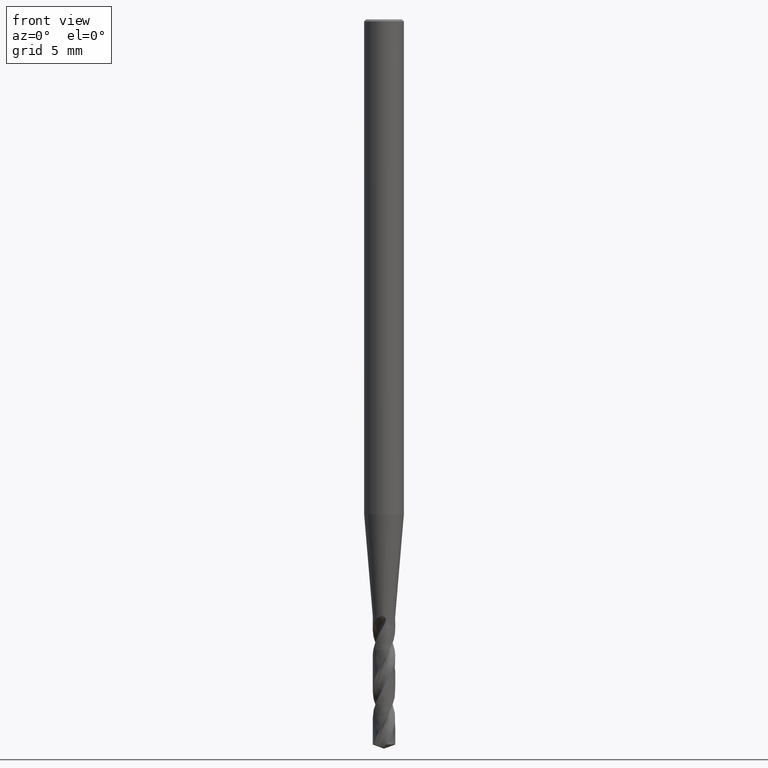
[diagram: clean part render]
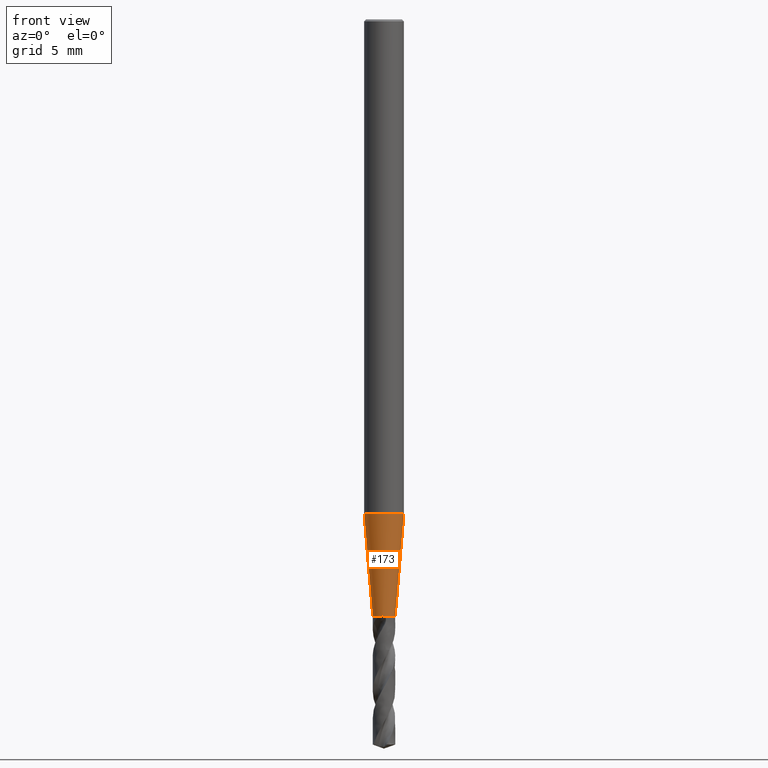
[diagram: same view with one face highlighted and labeled with its STEP entity id]
A machine part, front view. The second image highlights one B-rep face of the part: STEP entity #173.
In plain terms, the highlighted face is a freeform B-spline surface patch.
Its self-contained STEP definition (entity closure, byte-faithful):
#75 = VERTEX_POINT('', #76);
#76 = CARTESIAN_POINT('', (-0.242015249666791, -0.814818150834109, -45.));
#110 = EDGE_CURVE('', #75, #111, #113, .T.);
#111 = VERTEX_POINT('', #112);
#112 = CARTESIAN_POINT('', (-0.85, 2.80750278704531E-15, -45.));
#113 = CIRCLE('', #114, 0.849999999999998);
#114 = AXIS2_PLACEMENT_3D('', #115, #116, #117);
#115 = CARTESIAN_POINT('', (1.68722975549459E-31, 2.75545529808154E-15, -45.));
#116 = DIRECTION('', (3.74939945665464E-33, 6.12323399573677E-17, -1.));
#117 = DIRECTION('', (-1., 6.12323399573677E-17, 0.));
#173 = ADVANCED_FACE('', (#174), #285, .T.);
#174 = FACE_OUTER_BOUND('', #175, .T.);
#175 = EDGE_LOOP('', (#176, #193, #202, #217, #225, #240, #247, #255, #262, #263, #264, #279));
#176 = ORIENTED_EDGE('', *, *, #177, .T.);
#177 = EDGE_CURVE('', #178, #180, #182, .T.);
#178 = VERTEX_POINT('', #179);
#179 = CARTESIAN_POINT('', (-0.116472770193766, -0.843689035298351, -44.98));
#180 = VERTEX_POINT('', #181);
#181 = CARTESIAN_POINT('', (-0.0113583335266915, -0.849924107352822, -45.));
#182 = B_SPLINE_CURVE_WITH_KNOTS('', 3, (#183, #184, #185, #186, #187, #188, #189, #190, #191, #192), .UNSPECIFIED., .F., .U., (4, 3, 3, 4), (0., 0.0388263671759205, 0.0775487067992832, 0.107934768047381), .UNSPECIFIED.);
#183 = CARTESIAN_POINT('', (-0.116472770193746, -0.843689035298354, -44.98));
#184 = CARTESIAN_POINT('', (-0.103652091234451, -0.845457803717948, -44.9800134651162));
#185 = CARTESIAN_POINT('', (-0.0907490556722904, -0.846875475080581, -44.9807536850073));
#186 = CARTESIAN_POINT('', (-0.0779495075884962, -0.847915569711978, -44.9823625056988));
#187 = CARTESIAN_POINT('', (-0.0651842533559646, -0.848952877616034, -44.9839670158742));
#188 = CARTESIAN_POINT('', (-0.0524523591742012, -0.849618763970118, -44.9864482899008));
#189 = CARTESIAN_POINT('', (-0.0400248670735214, -0.849909932922412, -44.9899231765091));
#190 = CARTESIAN_POINT('', (-0.0302728081895671, -0.850138418021815, -44.9926499775841));
#191 = CARTESIAN_POINT('', (-0.0206622698086067, -0.850137749399301, -44.9960023220794));
#192 = CARTESIAN_POINT('', (-0.0113583335266863, -0.849924107352822, -45.));
#193 = ORIENTED_EDGE('', *, *, #194, .F.);
#194 = EDGE_CURVE('', #195, #180, #197, .T.);
#195 = VERTEX_POINT('', #196);
#196 = CARTESIAN_POINT('', (0.242015249666791, 0.814818150834114, -45.));
#197 = CIRCLE('', #198, 0.849999999999998);
#198 = AXIS2_PLACEMENT_3D('', #199, #200, #201);
#199 = CARTESIAN_POINT('', (1.68722975549459E-31, 2.75545529808154E-15, -45.));
#200 = DIRECTION('', (3.74939945665464E-33, 6.12323399573677E-17, -1.));
#201 = DIRECTION('', (-1., 6.12323399573677E-17, 0.));
#202 = ORIENTED_EDGE('', *, *, #203, .F.);
#203 = EDGE_CURVE('', #204, #195, #206, .T.);
#204 = VERTEX_POINT('', #205);
#205 = CARTESIAN_POINT('', (0.117187698491014, 0.843590029458422, -44.98));
#206 = B_SPLINE_CURVE_WITH_KNOTS('', 3, (#207, #208, #209, #210, #211, #212, #213, #214, #215, #216), .UNSPECIFIED., .F., .U., (4, 3, 3, 4), (0., 0.0589415863596333, 0.117468801322687, 0.130118926991663), .UNSPECIFIED.);
#207 = CARTESIAN_POINT('', (0.117187698499809, 0.843590029457203, -44.98));
#208 = CARTESIAN_POINT('', (0.136647775251346, 0.84088498137007, -44.980020416838));
#209 = CARTESIAN_POINT('', (0.15604416048936, 0.837352714032996, -44.9817032845893));
#210 = CARTESIAN_POINT('', (0.175008044515285, 0.833117978750446, -44.9846102432946));
#211 = CARTESIAN_POINT('', (0.193838608561316, 0.828913014522284, -44.9874967654863));
#212 = CARTESIAN_POINT('', (0.212358776571742, 0.823993897811563, -44.9916052798852));
#213 = CARTESIAN_POINT('', (0.230387418593385, 0.81847868912554, -44.9966206977959));
#214 = CARTESIAN_POINT('', (0.234284145737479, 0.817286626885557, -44.9977047348015));
#215 = CARTESIAN_POINT('', (0.23816049473715, 0.816066080130397, -44.998832023993));
#216 = CARTESIAN_POINT('', (0.242015249666783, 0.814818150834116, -45.));
#217 = ORIENTED_EDGE('', *, *, #218, .F.);
#218 = EDGE_CURVE('', #219, #204, #221, .T.);
#219 = VERTEX_POINT('', #220);
#220 = CARTESIAN_POINT('', (0.116472770193462, 0.843689035298399, -44.98));
#221 = LINE('', #222, #223);
#222 = CARTESIAN_POINT('', (0.116472770193462, 0.843689035298399, -44.98));
#223 = VECTOR('', #224, 0.000721751083816157);
#224 = DIRECTION('', (0.000714928297551765, -9.90058399769067E-5, 0.));
#225 = ORIENTED_EDGE('', *, *, #226, .T.);
#226 = EDGE_CURVE('', #219, #227, #229, .T.);
#227 = VERTEX_POINT('', #228);
#228 = CARTESIAN_POINT('', (0.0113583335266967, 0.849924107352828, -45.));
#229 = B_SPLINE_CURVE_WITH_KNOTS('', 3, (#230, #231, #232, #233, #234, #235, #236, #237, #238, #239), .UNSPECIFIED., .F., .U., (4, 3, 3, 4), (0., 0.0388263671759207, 0.0775487067992826, 0.107934768047281), .UNSPECIFIED.);
#230 = CARTESIAN_POINT('', (0.116472770193654, 0.843689035298372, -44.98));
#231 = CARTESIAN_POINT('', (0.103652091234358, 0.845457803717964, -44.9800134651162));
#232 = CARTESIAN_POINT('', (0.090749055672198, 0.846875475080595, -44.9807536850074));
#233 = CARTESIAN_POINT('', (0.0779495075884041, 0.84791556971199, -44.9823625056988));
#234 = CARTESIAN_POINT('', (0.0651842533558732, 0.848952877616045, -44.9839670158742));
#235 = CARTESIAN_POINT('', (0.0524523591741107, 0.849618763970126, -44.9864482899008));
#236 = CARTESIAN_POINT('', (0.0400248670734325, 0.849909932922419, -44.9899231765091));
#237 = CARTESIAN_POINT('', (0.0302728081895113, 0.85013841802182, -44.9926499775841));
#238 = CARTESIAN_POINT('', (0.0206622698085821, 0.850137749399305, -44.9960023220794));
#239 = CARTESIAN_POINT('', (0.0113583335266922, 0.849924107352828, -45.));
#240 = ORIENTED_EDGE('', *, *, #241, .F.);
#241 = EDGE_CURVE('', #111, #227, #242, .T.);
#242 = CIRCLE('', #243, 0.849999999999998);
#243 = AXIS2_PLACEMENT_3D('', #244, #245, #246);
#244 = CARTESIAN_POINT('', (1.68722975549459E-31, 2.75545529808154E-15, -45.));
#245 = DIRECTION('', (3.74939945665464E-33, 6.12323399573677E-17, -1.));
#246 = DIRECTION('', (-1., 6.12323399573677E-17, 0.));
#247 = ORIENTED_EDGE('', *, *, #248, .F.);
#248 = EDGE_CURVE('', #249, #111, #251, .T.);
#249 = VERTEX_POINT('', #250);
#250 = CARTESIAN_POINT('', (-1.5, 2.3764883460854E-15, -37.311));
#251 = LINE('', #252, #253);
#252 = CARTESIAN_POINT('', (-1.5, 2.3764883460854E-15, -37.311));
#253 = VECTOR('', #254, 7.71642540299587);
#254 = DIRECTION('', (0.65, 4.31014440959911E-16, -7.689));
#255 = ORIENTED_EDGE('', *, *, #256, .T.);
#256 = EDGE_CURVE('', #249, #249, #257, .T.);
#257 = CIRCLE('', #258, 1.5);
#258 = AXIS2_PLACEMENT_3D('', #259, #260, #261);
#259 = CARTESIAN_POINT('', (1.39893843127241E-31, 2.28463983614934E-15, -37.311));
#260 = DIRECTION('', (3.74939945665464E-33, 6.12323399573677E-17, -1.));
#261 = DIRECTION('', (-1., 6.12323399573677E-17, 0.));
#262 = ORIENTED_EDGE('', *, *, #248, .T.);
#263 = ORIENTED_EDGE('', *, *, #110, .F.);
#264 = ORIENTED_EDGE('', *, *, #265, .F.);
#265 = EDGE_CURVE('', #266, #75, #268, .T.);
#266 = VERTEX_POINT('', #267);
#267 = CARTESIAN_POINT('', (-0.117187698490708, -0.843590029458459, -44.98));
#268 = B_SPLINE_CURVE_WITH_KNOTS('', 3, (#269, #270, #271, #272, #273, #274, #275, #276, #277, #278), .UNSPECIFIED., .F., .U., (4, 3, 3, 4), (0., 0.0589415863596287, 0.117468801322681, 0.130118926991294), .UNSPECIFIED.);
#269 = CARTESIAN_POINT('', (-0.117187698500182, -0.843590029457146, -44.98));
#270 = CARTESIAN_POINT('', (-0.136647775251716, -0.840884981370003, -44.980020416838));
#271 = CARTESIAN_POINT('', (-0.156044160489726, -0.83735271403292, -44.9817032845893));
#272 = CARTESIAN_POINT('', (-0.175008044515645, -0.833117978750362, -44.9846102432947));
#273 = CARTESIAN_POINT('', (-0.193838608561671, -0.82891301452219, -44.9874967654863));
#274 = CARTESIAN_POINT('', (-0.212358776572089, -0.823993897811461, -44.9916052798852));
#275 = CARTESIAN_POINT('', (-0.230387418593726, -0.81847868912543, -44.996620697796));
#276 = CARTESIAN_POINT('', (-0.234284145737707, -0.81728662688548, -44.9977047348016));
#277 = CARTESIAN_POINT('', (-0.238160494737267, -0.816066080130354, -44.998832023993));
#278 = CARTESIAN_POINT('', (-0.24201524966679, -0.814818150834109, -45.));
#279 = ORIENTED_EDGE('', *, *, #280, .F.);
#280 = EDGE_CURVE('', #178, #266, #281, .T.);
#281 = LINE('', #282, #283);
#282 = CARTESIAN_POINT('', (-0.116472770193766, -0.843689035298351, -44.98));
#283 = VECTOR('', #284, 0.000721751083201148);
#284 = DIRECTION('', (-0.000714928296942571, 9.90058398925298E-5, 0.));
#285 = (
   BOUNDED_SURFACE ()
   B_SPLINE_SURFACE (2, 1, ((#286, #287), (#288, #289), (#290, #291), (#292, #293), (#294, #295), (#296, #297), (#298, #299), (#300, #301), (#302, #303)), .UNSPECIFIED., .T., .F., .U.)
   B_SPLINE_SURFACE_WITH_KNOTS ((3, 2, 2, 2, 3), (2, 2), (0., 0.25, 0.5, 0.75, 1.), (0., 1.), .UNSPECIFIED.)
   GEOMETRIC_REPRESENTATION_ITEM ()
   RATIONAL_B_SPLINE_SURFACE (((1., 1.), (0.707106781186548, 0.707106781186548), (1., 1.), (0.707106781186548, 0.707106781186548), (1., 1.), (0.707106781186548, 0.707106781186548), (1., 1.), (0.707106781186548, 0.707106781186548), (1., 1.)))
   REPRESENTATION_ITEM ('')
   SURFACE ()
);
#286 = CARTESIAN_POINT('', (-1.5, 2.3764883460854E-15, -37.311));
#287 = CARTESIAN_POINT('', (-0.85, 2.80750278704531E-15, -45.));
#288 = CARTESIAN_POINT('', (-1.5, 1.5, -37.311));
#289 = CARTESIAN_POINT('', (-0.85, 0.850000000000003, -45.));
#290 = CARTESIAN_POINT('', (1.35585468084861E-31, 1.5, -37.311));
#291 = CARTESIAN_POINT('', (1.66400347195057E-31, 0.850000000000003, -45.));
#292 = CARTESIAN_POINT('', (1.5, 1.5, -37.311));
#293 = CARTESIAN_POINT('', (0.85, 0.850000000000003, -45.));
#294 = CARTESIAN_POINT('', (1.5, 2.3764883460854E-15, -37.311));
#295 = CARTESIAN_POINT('', (0.85, 2.80750278704531E-15, -45.));
#296 = CARTESIAN_POINT('', (1.5, -1.5, -37.311));
#297 = CARTESIAN_POINT('', (0.85, -0.849999999999998, -45.));
#298 = CARTESIAN_POINT('', (1.83697019872103E-16, -1.5, -37.311));
#299 = CARTESIAN_POINT('', (1.04094977927525E-16, -0.849999999999997, -45.));
#300 = CARTESIAN_POINT('', (-1.5, -1.5, -37.311));
#301 = CARTESIAN_POINT('', (-0.85, -0.849999999999998, -45.));
#302 = CARTESIAN_POINT('', (-1.5, 2.3764883460854E-15, -37.311));
#303 = CARTESIAN_POINT('', (-0.85, 2.80750278704531E-15, -45.));